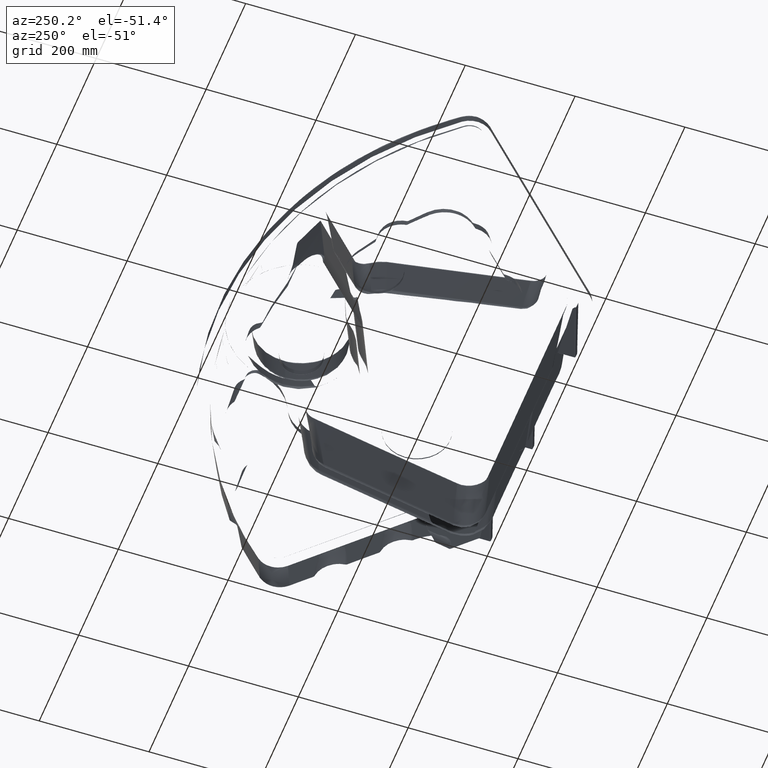
[diagram: clean part render]
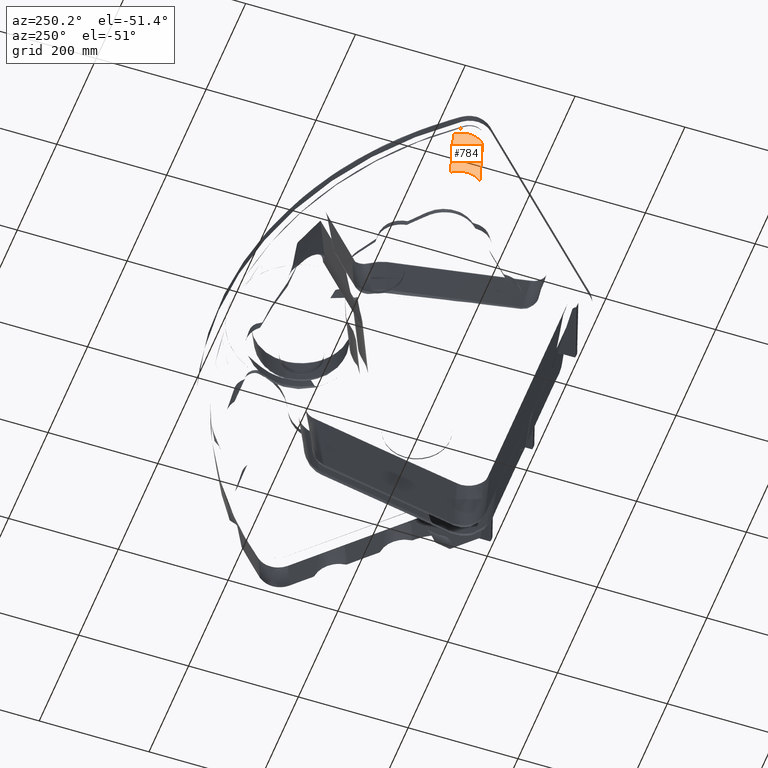
[diagram: same view with one face highlighted and labeled with its STEP entity id]
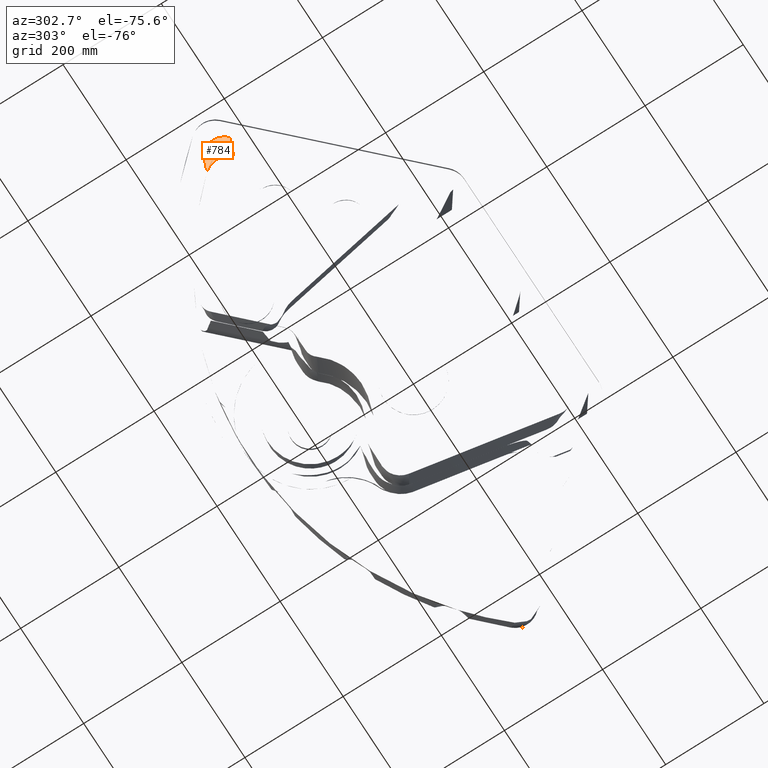
[diagram: same view with one face highlighted and labeled with its STEP entity id]
A machine part, auxiliary view. The second image highlights one B-rep face of the part: STEP entity #784.
A second angle (auxiliary view) of the same face is appended — the face is thin or edge-on in the first view.
In plain terms, the highlighted face is a freeform B-spline surface patch.
Its self-contained STEP definition (entity closure, byte-faithful):
#395=(
BOUNDED_SURFACE()
B_SPLINE_SURFACE(3,2,((#9762,#9763,#9764),(#9765,#9766,#9767),(#9768,#9769,
#9770),(#9771,#9772,#9773)),.UNSPECIFIED.,.F.,.F.,.F.)
B_SPLINE_SURFACE_WITH_KNOTS((4,4),(3,3),(0.,1.),(0.,1.),.UNSPECIFIED.)
GEOMETRIC_REPRESENTATION_ITEM()
RATIONAL_B_SPLINE_SURFACE(((1.,0.733273288090081,1.),(1.,0.731638108814764,
1.),(1.,0.729973129745657,1.),(1.,0.728276601185822,1.)))
REPRESENTATION_ITEM('')
SURFACE()
);
#784=ADVANCED_FACE('',(#1358),#395,.T.);
#1358=FACE_OUTER_BOUND('',#1876,.T.);
#1876=EDGE_LOOP('',(#2555,#2556,#2557,#2558,#2559,#2560));
#2555=ORIENTED_EDGE('',*,*,#6018,.T.);
#2556=ORIENTED_EDGE('',*,*,#6030,.F.);
#2557=ORIENTED_EDGE('',*,*,#6031,.F.);
#2558=ORIENTED_EDGE('',*,*,#6032,.F.);
#2559=ORIENTED_EDGE('',*,*,#6033,.T.);
#2560=ORIENTED_EDGE('',*,*,#6028,.F.);
#5064=VERTEX_POINT('',#9568);
#5065=VERTEX_POINT('',#9573);
#5073=VERTEX_POINT('',#9688);
#5074=VERTEX_POINT('',#9727);
#5075=VERTEX_POINT('',#9734);
#5076=VERTEX_POINT('',#9739);
#6018=EDGE_CURVE('',#5065,#5064,#7477,.T.);
#6028=EDGE_CURVE('',#5065,#5073,#7487,.T.);
#6030=EDGE_CURVE('',#5074,#5064,#7489,.T.);
#6031=EDGE_CURVE('',#5075,#5074,#7490,.T.);
#6032=EDGE_CURVE('',#5076,#5075,#7491,.T.);
#6033=EDGE_CURVE('',#5076,#5073,#7492,.T.);
#7477=B_SPLINE_CURVE_WITH_KNOTS('',3,(#9569,#9570,#9571,#9572),.UNSPECIFIED.,
 .F.,.F.,(4,4),(0.,1.),.UNSPECIFIED.);
#7487=B_SPLINE_CURVE_WITH_KNOTS('',3,(#9684,#9685,#9686,#9687),.UNSPECIFIED.,
 .F.,.F.,(4,4),(0.,1.),.UNSPECIFIED.);
#7489=B_SPLINE_CURVE_WITH_KNOTS('',3,(#9723,#9724,#9725,#9726),.UNSPECIFIED.,
 .F.,.F.,(4,4),(0.,1.),.UNSPECIFIED.);
#7490=B_SPLINE_CURVE_WITH_KNOTS('',3,(#9728,#9729,#9730,#9731,#9732,#9733),
 .UNSPECIFIED.,.F.,.F.,(4,2,4),(0.,0.5,1.),.UNSPECIFIED.);
#7491=B_SPLINE_CURVE_WITH_KNOTS('',3,(#9735,#9736,#9737,#9738),.UNSPECIFIED.,
 .F.,.F.,(4,4),(0.,1.),.UNSPECIFIED.);
#7492=B_SPLINE_CURVE_WITH_KNOTS('',3,(#9740,#9741,#9742,#9743,#9744,#9745,
#9746,#9747,#9748,#9749,#9750,#9751,#9752,#9753,#9754,#9755,#9756,#9757,
#9758,#9759,#9760,#9761),.UNSPECIFIED.,.F.,.F.,(4,2,2,2,2,2,2,2,2,2,4),(0.,
0.125000000000001,0.187500000000001,0.218750000000001,0.250000000000002,
0.500000000000002,0.625000000000002,0.687500000000002,0.718750000000002,
0.750000000000001,1.),.UNSPECIFIED.);
#9568=CARTESIAN_POINT('',(-498.811040439213,104.402398263269,-13.5760968180357));
#9569=CARTESIAN_POINT('',(-494.036498155455,111.199662879443,-13.4171384452127));
#9570=CARTESIAN_POINT('',(-495.897923954615,109.071348284996,-13.4669104408466));
#9571=CARTESIAN_POINT('',(-497.492431955217,106.782629702698,-13.5204335861449));
#9572=CARTESIAN_POINT('',(-498.811040484421,104.402398181664,-13.5760968199442));
#9573=CARTESIAN_POINT('',(-494.036498220706,111.199663113319,-13.4171389621679));
#9684=CARTESIAN_POINT('',(-494.036497862834,111.199662963425,-13.4171400103402));
#9685=CARTESIAN_POINT('',(-489.603112326204,111.480093069568,-43.3560849973419));
#9686=CARTESIAN_POINT('',(-485.188561451933,111.744333139096,-73.0479276590523));
#9687=CARTESIAN_POINT('',(-480.792936148344,111.992452201169,-102.492667841245));
#9688=CARTESIAN_POINT('',(-480.792936148344,111.992452201169,-102.492667841245));
#9723=CARTESIAN_POINT('',(-503.697084044974,84.0685425428293,-13.78));
#9724=CARTESIAN_POINT('',(-503.942933719021,91.1249099828769,-13.78));
#9725=CARTESIAN_POINT('',(-502.237563853381,98.2171515709876,-13.7207427608566));
#9726=CARTESIAN_POINT('',(-498.811040490092,104.402398171427,-13.5760968201835));
#9727=CARTESIAN_POINT('',(-503.697083735546,84.0685336616843,-13.78));
#9728=CARTESIAN_POINT('',(-492.249800992011,57.8062839960515,-13.78));
#9729=CARTESIAN_POINT('',(-495.754487612583,61.3109706166242,-13.78));
#9730=CARTESIAN_POINT('',(-498.494533087409,65.3270397326837,-13.78));
#9731=CARTESIAN_POINT('',(-502.445341745569,74.3819429557764,-13.78));
#9732=CARTESIAN_POINT('',(-503.524984973554,79.1289619281833,-13.78));
#9733=CARTESIAN_POINT('',(-503.697084044975,84.0685425428294,-13.78));
#9734=CARTESIAN_POINT('',(-492.249800931872,57.8062839359106,-13.7799999999898));
#9735=CARTESIAN_POINT('',(-479.43356258406,58.1762816902836,-102.492666455462));
#9736=CARTESIAN_POINT('',(-483.690581241028,58.0687530956128,-73.1294257578652));
#9737=CARTESIAN_POINT('',(-487.962660667933,57.9454204884561,-43.5585369393778));
#9738=CARTESIAN_POINT('',(-492.249800864773,57.8062838688138,-13.78));
#9739=CARTESIAN_POINT('',(-479.43356258406,58.1762816902829,-102.492666455462));
#9740=CARTESIAN_POINT('',(-479.433562584059,58.1762816902825,-102.492666455462));
#9741=CARTESIAN_POINT('',(-481.243789460215,60.0001467355643,-102.584419578896));
#9742=CARTESIAN_POINT('',(-482.838838270469,61.9656259510121,-102.665058650858));
#9743=CARTESIAN_POINT('',(-484.897715270766,65.0454325426185,-102.76807134348));
#9744=CARTESIAN_POINT('',(-485.528595288712,66.0940181078145,-102.799447272232));
#9745=CARTESIAN_POINT('',(-486.392113157904,67.6903868988491,-102.842150990411));
#9746=CARTESIAN_POINT('',(-486.666162949688,68.2264300071803,-102.85566042282));
#9747=CARTESIAN_POINT('',(-487.186859977397,69.3048419712683,-102.88126040603));
#9748=CARTESIAN_POINT('',(-487.420437093868,69.8166594155601,-102.892711562114));
#9749=CARTESIAN_POINT('',(-489.635722535493,74.9948074176883,-103.001086850094));
#9750=CARTESIAN_POINT('',(-490.687566380462,79.9187232873388,-103.049285939773));
#9751=CARTESIAN_POINT('',(-490.874998251747,87.2422347344674,-103.049382627205));
#9752=CARTESIAN_POINT('',(-490.708847727506,89.7043170151448,-103.037697251565));
#9753=CARTESIAN_POINT('',(-490.108651168994,93.3633581680325,-103.001676018702));
#9754=CARTESIAN_POINT('',(-489.850215709321,94.5773152224918,-102.986605019285));
#9755=CARTESIAN_POINT('',(-489.375180513589,96.3811964829757,-102.959459322224));
#9756=CARTESIAN_POINT('',(-489.202280217042,96.9796463848532,-102.949655449366));
#9757=CARTESIAN_POINT('',(-488.827500861204,98.1694338184912,-102.928561467336));
#9758=CARTESIAN_POINT('',(-488.614584532015,98.7907322268206,-102.916658117558));
#9759=CARTESIAN_POINT('',(-486.767510966852,103.804682742805,-102.814033486351));
#9760=CARTESIAN_POINT('',(-484.23217400453,108.158167247503,-102.676504252526));
#9761=CARTESIAN_POINT('',(-480.792936148344,111.992452201169,-102.492667841245));
#9762=CARTESIAN_POINT('',(-492.542980905868,57.7967451322883,-11.7434074696716));
#9763=CARTESIAN_POINT('',(-517.912760867856,83.6912637876224,-15.2736770870515));
#9764=CARTESIAN_POINT('',(-494.284327191999,111.183971075313,-11.7434075078965));
#9765=CARTESIAN_POINT('',(-488.162410348514,57.9396274256014,-42.1757128567858));
#9766=CARTESIAN_POINT('',(-513.642588686204,83.9597277230356,-45.8081305624254));
#9767=CARTESIAN_POINT('',(-489.778557005705,111.469547494336,-42.1757131801977));
#9768=CARTESIAN_POINT('',(-483.766669183471,58.0670260777867,-72.6059122577216));
#9769=CARTESIAN_POINT('',(-509.368804855334,84.2146919345678,-76.2760602870079));
#9770=CARTESIAN_POINT('',(-485.254772674907,111.740784408408,-72.6059139941005));
#9771=CARTESIAN_POINT('',(-479.355097571847,58.1782618974967,-103.033875475502));
#9772=CARTESIAN_POINT('',(-505.092249797046,84.4557816811639,-106.669290965285));
#9773=CARTESIAN_POINT('',(-480.712139966361,111.997011197693,-103.033879325723));